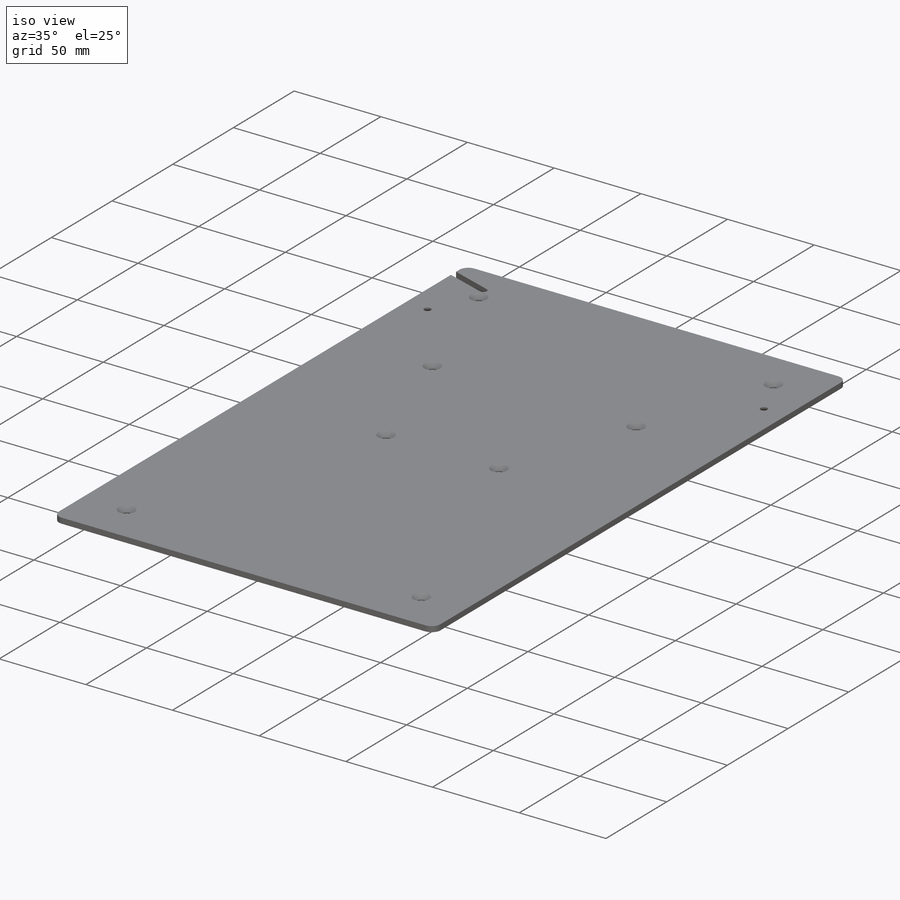
[diagram: iso view]
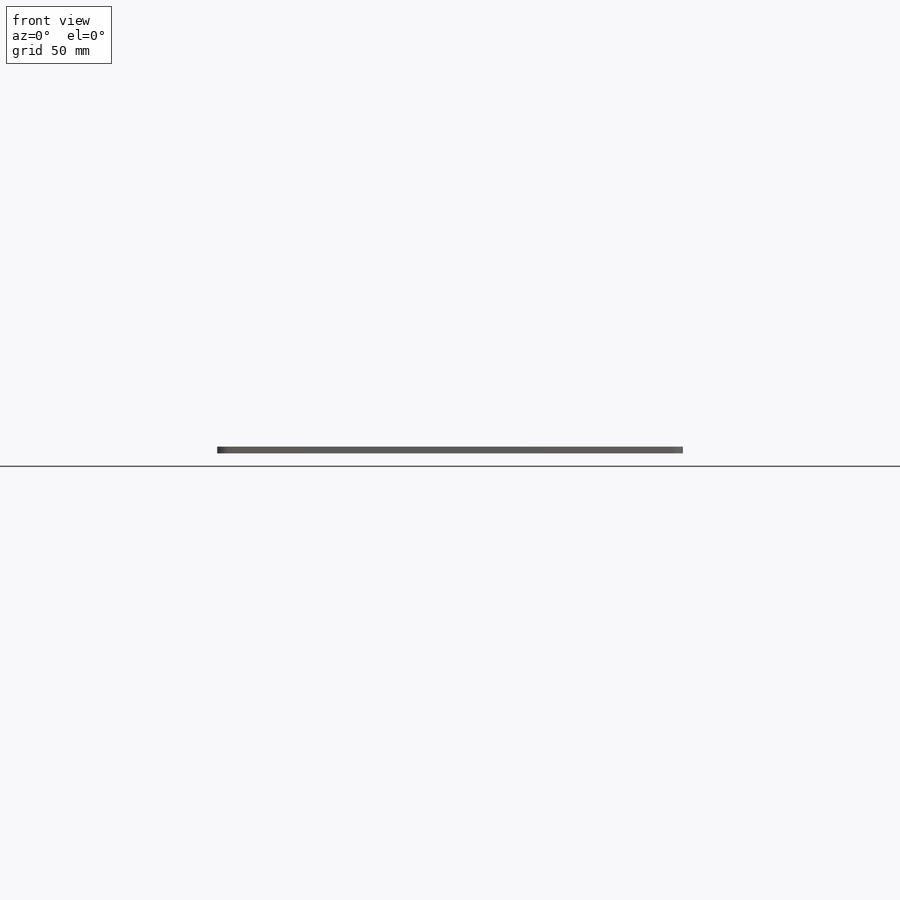
[diagram: front view]
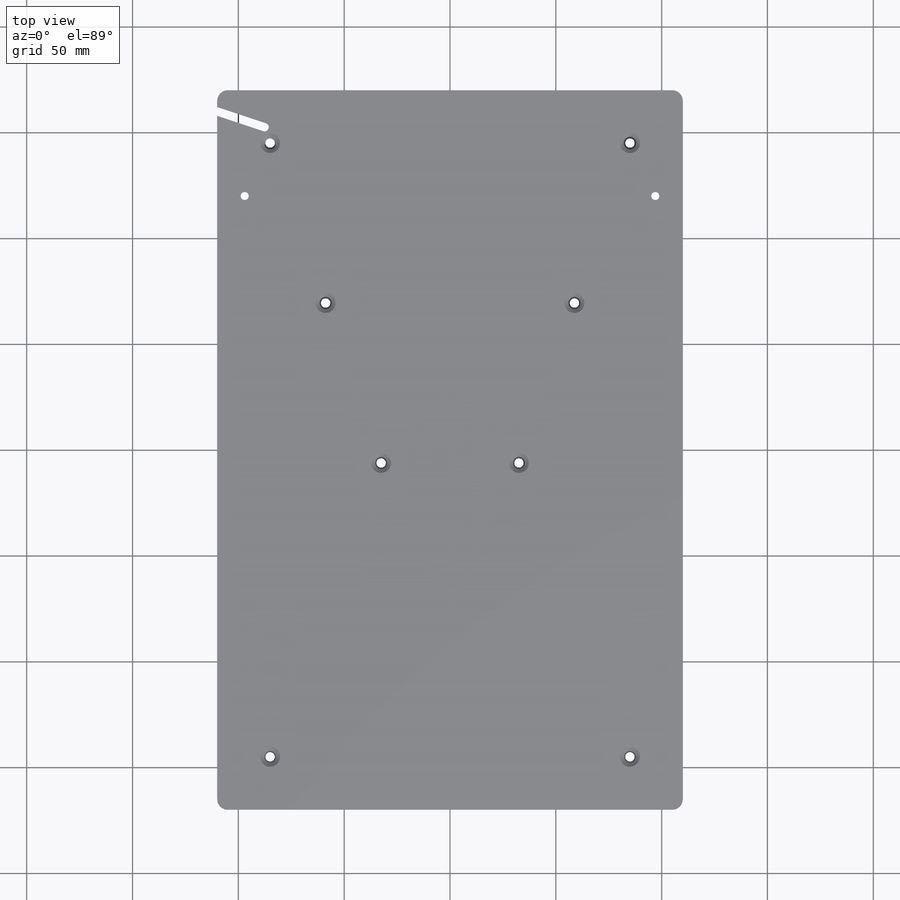
[diagram: top view]
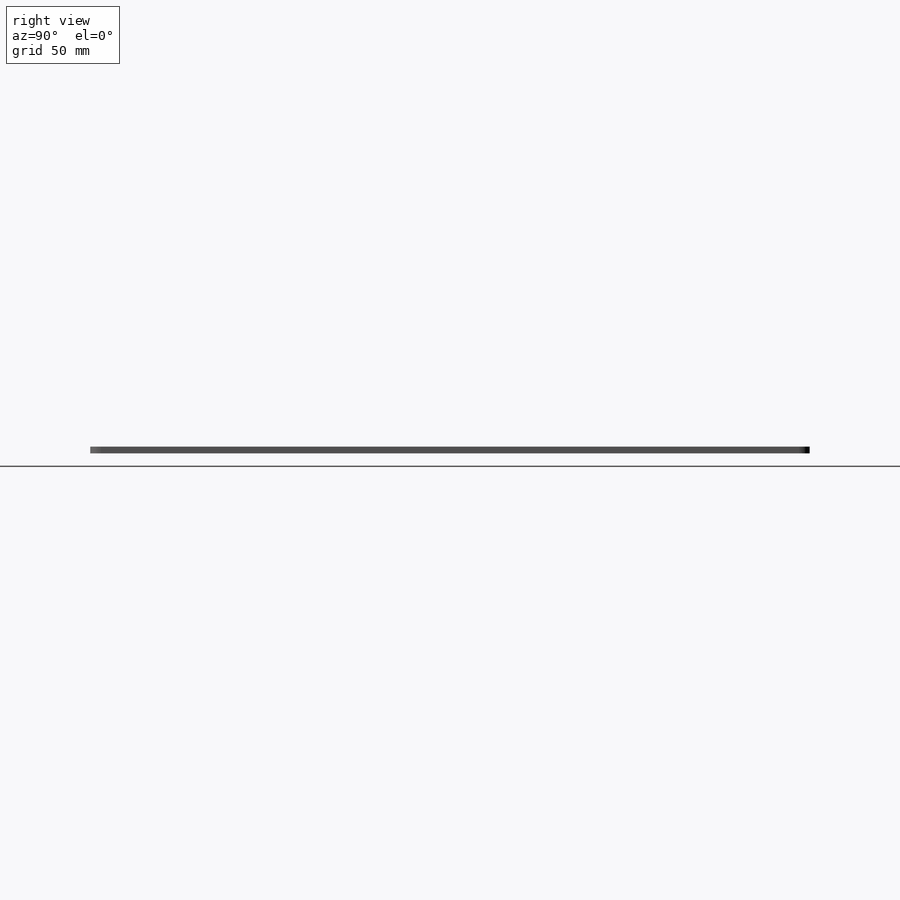
[diagram: right view]
SOLIDWORKS PART (.sldprt)
format: sldprt  version: not decoded by parser v0  size: 282,624 bytes
history: native  units: mm
features: sketch x6, hole x2, material x1, extrude x1, fillet x1, mirror x1, cut_extrude x1 (+11 scaffold rows collapsed)
feature tree (24):
  scaffold x11  (default folders/planes/origin — collapsed)
  material  "Acrylic (Medium-high impact)"
  sketch  "Sketch1"  dims[D1=340.0mm D2=220.0mm]
  extrude  "Boss-Extrude1"  Depth=3.175mm
  fillet  "Fillet1"  Radius=5mm
  hole  "CSK for #6 Flat Head Socket Cap Screw1"  Diameter=3.7973mm Depth=3.175mm
  sketch  "Sketch3"  dims[D1=97.0mm D2=50.0mm]
  sketch  "Sketch4"  dims[hole-wizard template sketch: 55 standard entries collapsed; hole parameters kept: c17.Thru Hole Depth=3.175mm c17.Near C'Sink Dia.=7.7978mm c17.D4=~3.666174mm c17.Near C'Sink Angle=82.0deg]
  hole  "CSK for M4 Flat Head Machine Screw1"  Diameter=4.5mm Depth=3.175mm
  sketch  "Sketch6"  dims[D1=70.0mm D2=25.0mm D3=25.0mm D4=25.0mm D5=25.0mm D6=80.0mm D7=80.0mm]
  sketch  "Sketch5"  dims[hole-wizard template sketch: 55 standard entries collapsed; hole parameters kept: c17.Thru Hole Depth=3.175mm c17.Near C'Sink Dia.=9.4mm c17.D4=~3.666174mm c17.Near C'Sink Angle=90.0deg]
  mirror  "Mirror1"
  sketch  "Sketch7"  dims[D1=2.0mm D2=8.0mm D3=5.0mm]
  cut_extrude  "Cut-Extrude1"  [1 undecoded]
decode coverage: 10 of 12 modeling features carry decoded parameters
note: ~ marks probable driven/reference dimensions
note: 1 parameter value undecoded
note: suppression state not decoded; provenance and decode notes live in map.json
